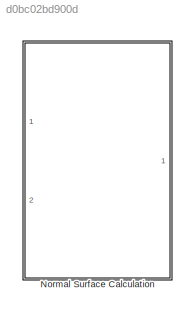
MODEL slx_d0bc02bd900d
KIND library
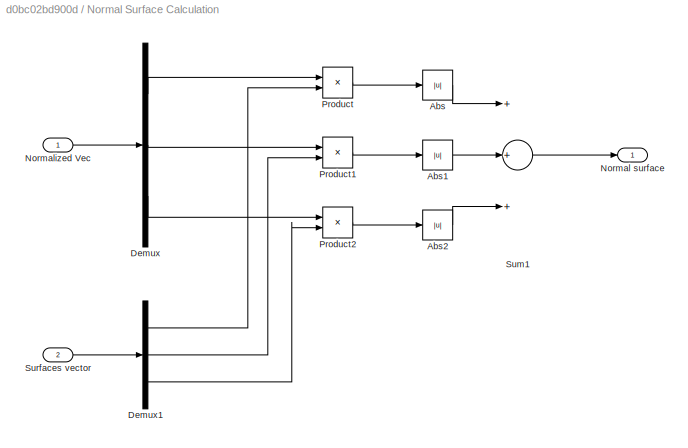
BLOCK [SubSystem] Normal Surface Calculation
  Ports = [2, 1]
  RequestExecContextInheritance = off
BLOCK [Abs] Normal Surface Calculation/Abs
  SaturateOnIntegerOverflow = off
BLOCK [Abs] Normal Surface Calculation/Abs1
  SaturateOnIntegerOverflow = off
BLOCK [Abs] Normal Surface Calculation/Abs2
  SaturateOnIntegerOverflow = off
BLOCK [Demux] Normal Surface Calculation/Demux
  DisplayOption = bar
  Outputs = 3
  Ports = [1, 3]
BLOCK [Demux] Normal Surface Calculation/Demux1
  DisplayOption = bar
  Outputs = 3
  Ports = [1, 3]
BLOCK [Outport] Normal Surface Calculation/Normal surface
  IconDisplay = Port number
BLOCK [Inport] Normal Surface Calculation/Normalized Vec 
  IconDisplay = Port number
BLOCK [Product] Normal Surface Calculation/Product
  InputSameDT = off
  OutDataTypeStr = Inherit: Inherit via internal rule
  Ports = [2, 1]
  RndMeth = Floor
  SaturateOnIntegerOverflow = off
BLOCK [Product] Normal Surface Calculation/Product1
  InputSameDT = off
  OutDataTypeStr = Inherit: Inherit via internal rule
  Ports = [2, 1]
  RndMeth = Floor
  SaturateOnIntegerOverflow = off
BLOCK [Product] Normal Surface Calculation/Product2
  InputSameDT = off
  OutDataTypeStr = Inherit: Inherit via internal rule
  Ports = [2, 1]
  RndMeth = Floor
  SaturateOnIntegerOverflow = off
BLOCK [Sum] Normal Surface Calculation/Sum1
  InputSameDT = off
  Inputs = +++
  OutDataTypeStr = Inherit: Inherit via internal rule
  Ports = [3, 1]
  SaturateOnIntegerOverflow = off
BLOCK [Inport] Normal Surface Calculation/Surfaces vector
  IconDisplay = Port number
  Port = 2
LINE Normal Surface Calculation/Abs1:1 -> Normal Surface Calculation/Sum1:2
LINE Normal Surface Calculation/Abs2:1 -> Normal Surface Calculation/Sum1:3
LINE Normal Surface Calculation/Abs:1 -> Normal Surface Calculation/Sum1:1
LINE Normal Surface Calculation/Demux1:1 -> Normal Surface Calculation/Product:2
LINE Normal Surface Calculation/Demux1:2 -> Normal Surface Calculation/Product1:2
LINE Normal Surface Calculation/Demux1:3 -> Normal Surface Calculation/Product2:2
LINE Normal Surface Calculation/Demux:1 -> Normal Surface Calculation/Product:1
LINE Normal Surface Calculation/Demux:2 -> Normal Surface Calculation/Product1:1
LINE Normal Surface Calculation/Demux:3 -> Normal Surface Calculation/Product2:1
LINE Normal Surface Calculation/Normalized Vec :1 -> Normal Surface Calculation/Demux:1
LINE Normal Surface Calculation/Product1:1 -> Normal Surface Calculation/Abs1:1
LINE Normal Surface Calculation/Product2:1 -> Normal Surface Calculation/Abs2:1
LINE Normal Surface Calculation/Product:1 -> Normal Surface Calculation/Abs:1
LINE Normal Surface Calculation/Sum1:1 -> Normal Surface Calculation/Normal surface:1
LINE Normal Surface Calculation/Surfaces vector:1 -> Normal Surface Calculation/Demux1:1
